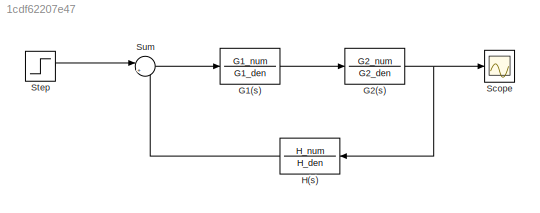
MODEL slx_1cdf62207e47
KIND model
CONFIG AbsTol = auto
CONFIG EnableMultiTasking = off
CONFIG FixedStep = auto
CONFIG MaxStep = auto
CONFIG MinStep = auto
CONFIG RelTol = 1e-3
CONFIG SampleTimeConstraint = Unconstrained
CONFIG SolverName = VariableStepAuto
CONFIG StartTime = 0.0
CONFIG StopTime = 20.0
BLOCK [TransferFcn] G1(s)
  Denominator = G1_den
  Numerator = G1_num
BLOCK [TransferFcn] G2(s)
  Denominator = G2_den
  Numerator = G2_num
BLOCK [TransferFcn] H(s)
  Denominator = H_den
  Numerator = H_num
BLOCK [Scope] Scope
  Floating = off
  NumInputPorts = 1
  ScopeSpecificationString = Simulink.scopes.TimeScopeBlockCfg('CurrentConfiguration', extmgr.ConfigurationSet(extmgr.Configuration('Core','General UI',true),extmgr.Configuration('Core','Source UI',true),extmgr.Configuration('Sources','WiredSimulink',true),extmgr.Configuration('Visuals','Time Domain',true,'SerializedDisplays',{struct('MinYLimReal','-1.42107','MaxYLimReal','0.99123','YLabelReal','','MinYLimMag','0.00000','MaxY...<+1380ch>
BLOCK [Step] Step
  SampleTime = 0
  Time = 0
BLOCK [Sum] Sum
  Inputs = |+-
LINE G1(s):1 -> G2(s):1
NET G2(s):1 -> H(s):1, Scope:1
LINE H(s):1 -> Sum:2
LINE Step:1 -> Sum:1
LINE Sum:1 -> G1(s):1
note: NET lines group one-source signal fan-out (src -> all destinations, sorted); 1:1 wires keep LINE
